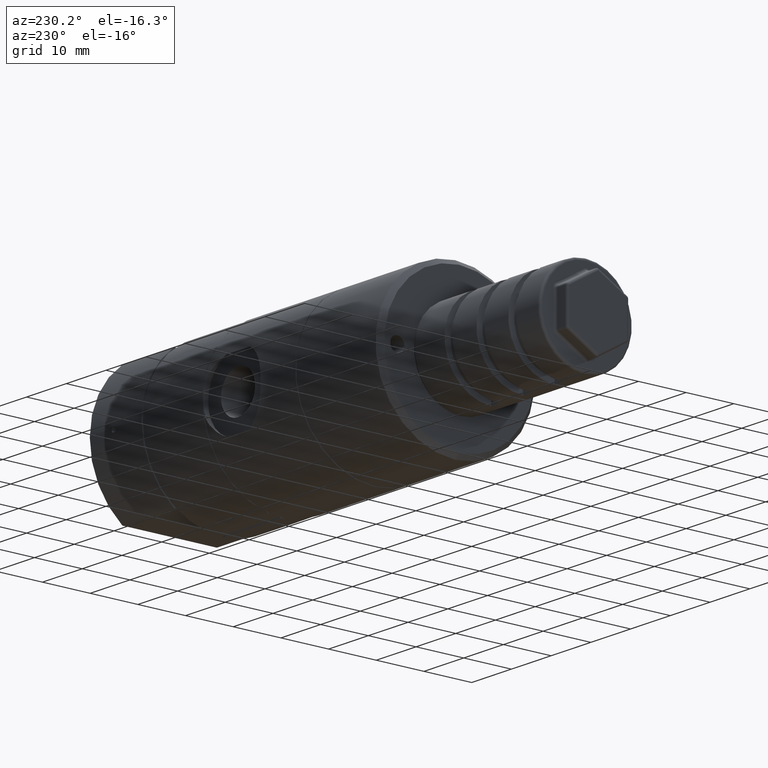
[diagram: clean part render]
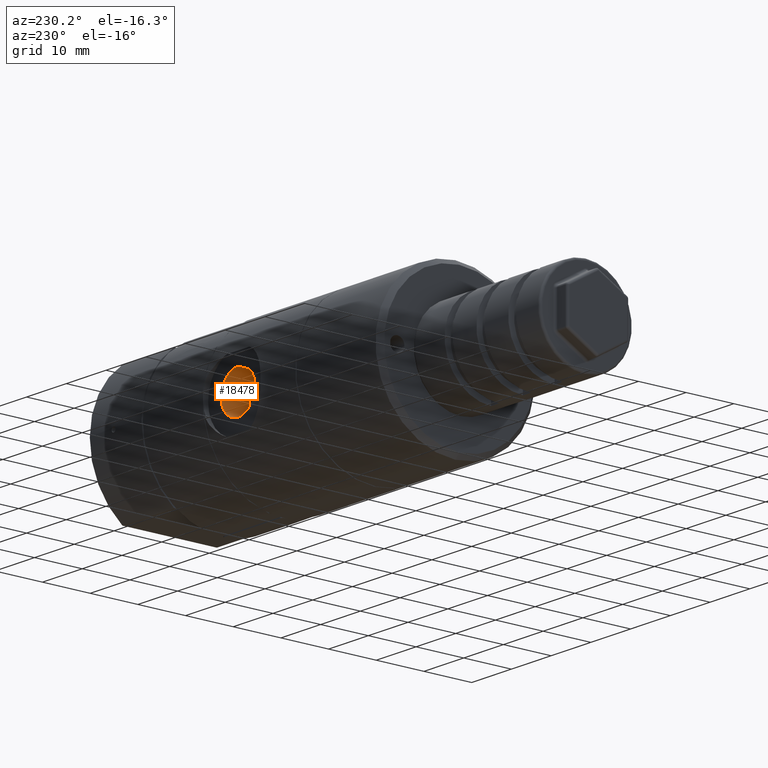
[diagram: same view with one face highlighted and labeled with its STEP entity id]
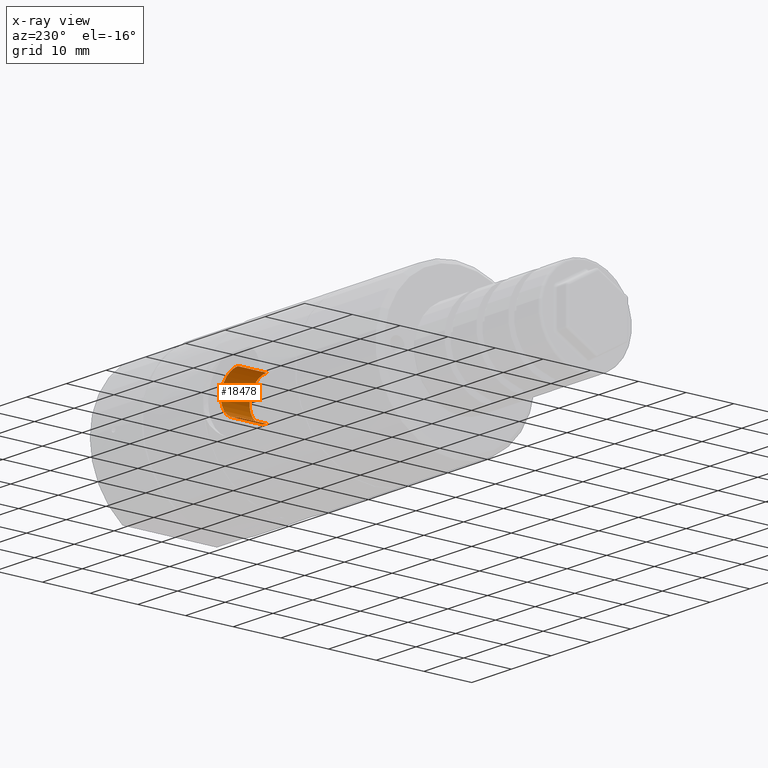
[diagram: x-ray of the same camera — body ghosted, the highlighted face saturated]
A machine part, auxiliary view. The second image highlights one B-rep face of the part: STEP entity #18478.
The next image is the same camera in x-ray: the body ghosted, the highlighted face saturated — about 0% of this face is hidden behind the body in this view.
In plain terms, the highlighted cylindrical surface (edge-blend (fillet) strip) has radius 4.283 mm, axis along (0, 1, -0).
Its self-contained STEP definition (entity closure, byte-faithful):
#21 = VECTOR ( 'NONE', #7403, 1000.000000000000000 ) ;
#134 = EDGE_CURVE ( 'NONE', #5754, #3992, #13641, .T. ) ;
#804 = VERTEX_POINT ( 'NONE', #5180 ) ;
#834 = DIRECTION ( 'NONE',  ( 0.0000000000000000000, 1.000000000000000000, -6.123233995736769700E-017 ) ) ;
#1181 = AXIS2_PLACEMENT_3D ( 'NONE', #3757, #834, #16648 ) ;
#2375 = CIRCLE ( 'NONE', #18739, 4.283000000000000400 ) ;
#3339 = DIRECTION ( 'NONE',  ( 0.0000000000000000000, 1.000000000000000000, -6.123233995736769700E-017 ) ) ;
#3757 = CARTESIAN_POINT ( 'NONE',  ( -35.50000000000000000, 16.75000000000000000, -1.194049840698031800E-015 ) ) ;
#3992 = VERTEX_POINT ( 'NONE', #9612 ) ;
#3993 = ORIENTED_EDGE ( 'NONE', *, *, #5796, .T. ) ;
#5040 = CIRCLE ( 'NONE', #6293, 4.283000000000000400 ) ;
#5105 = DIRECTION ( 'NONE',  ( 0.0000000000000000000, 0.0000000000000000000, 1.000000000000000000 ) ) ;
#5180 = CARTESIAN_POINT ( 'NONE',  ( -35.50000000000000000, 15.25000000000000000, 4.282999999999999500 ) ) ;
#5727 = ORIENTED_EDGE ( 'NONE', *, *, #17666, .T. ) ;
#5754 = VERTEX_POINT ( 'NONE', #18099 ) ;
#5796 = EDGE_CURVE ( 'NONE', #804, #3992, #2375, .T. ) ;
#6293 = AXIS2_PLACEMENT_3D ( 'NONE', #9116, #3339, #10567 ) ;
#6860 = VERTEX_POINT ( 'NONE', #14682 ) ;
#7403 = DIRECTION ( 'NONE',  ( 0.0000000000000000000, 1.000000000000000000, -6.123233995736769700E-017 ) ) ;
#9116 = CARTESIAN_POINT ( 'NONE',  ( -35.50000000000000000, 9.250000000000000000, -7.348072910177760100E-016 ) ) ;
#9355 = CARTESIAN_POINT ( 'NONE',  ( -35.50000000000000000, 15.25000000000000000, -1.102201330761982000E-015 ) ) ;
#9378 = EDGE_LOOP ( 'NONE', ( #16893, #17117, #5727, #3993 ) ) ;
#9612 = CARTESIAN_POINT ( 'NONE',  ( -35.50000000000000000, 15.25000000000000000, -4.283000000000001300 ) ) ;
#10253 = CARTESIAN_POINT ( 'NONE',  ( -35.50000000000000000, 16.75000000000000000, 4.282999999999999500 ) ) ;
#10567 = DIRECTION ( 'NONE',  ( 0.0000000000000000000, 0.0000000000000000000, 1.000000000000000000 ) ) ;
#10976 = DIRECTION ( 'NONE',  ( 0.0000000000000000000, 1.000000000000000000, -6.123233995736769700E-017 ) ) ;
#11776 = LINE ( 'NONE', #10253, #21 ) ;
#12893 = CYLINDRICAL_SURFACE ( 'NONE', #1181, 4.283000000000000400 ) ;
#13348 = FACE_OUTER_BOUND ( 'NONE', #9378, .T. ) ;
#13641 = LINE ( 'NONE', #16886, #16128 ) ;
#13797 = DIRECTION ( 'NONE',  ( 0.0000000000000000000, 1.000000000000000000, -6.123233995736769700E-017 ) ) ;
#14527 = EDGE_CURVE ( 'NONE', #6860, #5754, #5040, .T. ) ;
#14682 = CARTESIAN_POINT ( 'NONE',  ( -35.50000000000000000, 9.250000000000000000, 4.283000000000000400 ) ) ;
#16128 = VECTOR ( 'NONE', #10976, 1000.000000000000000 ) ;
#16648 = DIRECTION ( 'NONE',  ( 0.0000000000000000000, 0.0000000000000000000, 1.000000000000000000 ) ) ;
#16886 = CARTESIAN_POINT ( 'NONE',  ( -35.50000000000000000, 16.75000000000000000, -4.283000000000001300 ) ) ;
#16893 = ORIENTED_EDGE ( 'NONE', *, *, #134, .F. ) ;
#17117 = ORIENTED_EDGE ( 'NONE', *, *, #14527, .F. ) ;
#17666 = EDGE_CURVE ( 'NONE', #6860, #804, #11776, .T. ) ;
#18099 = CARTESIAN_POINT ( 'NONE',  ( -35.50000000000000000, 9.250000000000000000, -4.283000000000000400 ) ) ;
#18478 = ADVANCED_FACE ( 'NONE', ( #13348 ), #12893, .F. ) ;
#18739 = AXIS2_PLACEMENT_3D ( 'NONE', #9355, #13797, #5105 ) ;